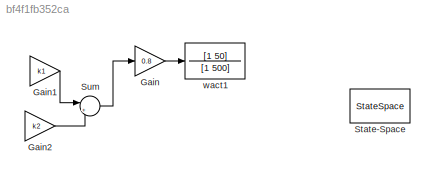
MODEL slx_bf4f1fb352ca
KIND model
CONFIG AbsTol = auto
CONFIG EnableMultiTasking = off
CONFIG FixedStep = auto
CONFIG MaxStep = auto
CONFIG MinStep = auto
CONFIG RelTol = 1e-3
CONFIG SampleTimeConstraint = Unconstrained
CONFIG SolverName = VariableStepAuto
CONFIG StartTime = 0.0
CONFIG StopTime = 10.0
BLOCK [Gain] Gain
  Gain = 0.8
BLOCK [Gain] Gain1
  Gain = k1
BLOCK [Gain] Gain2
  Gain = k2
BLOCK [StateSpace] State-Space
  A = A
  B = B
  C = C
  D = D
  InitialCondition = 0
BLOCK [Sum] Sum
  Inputs = |++
BLOCK [TransferFcn] wact1
  Denominator = [1 500]
  Numerator = [1 50]
LINE Gain1:1 -> Sum:1
LINE Gain2:1 -> Sum:2
LINE Gain:1 -> wact1:1
LINE Sum:1 -> Gain:1
